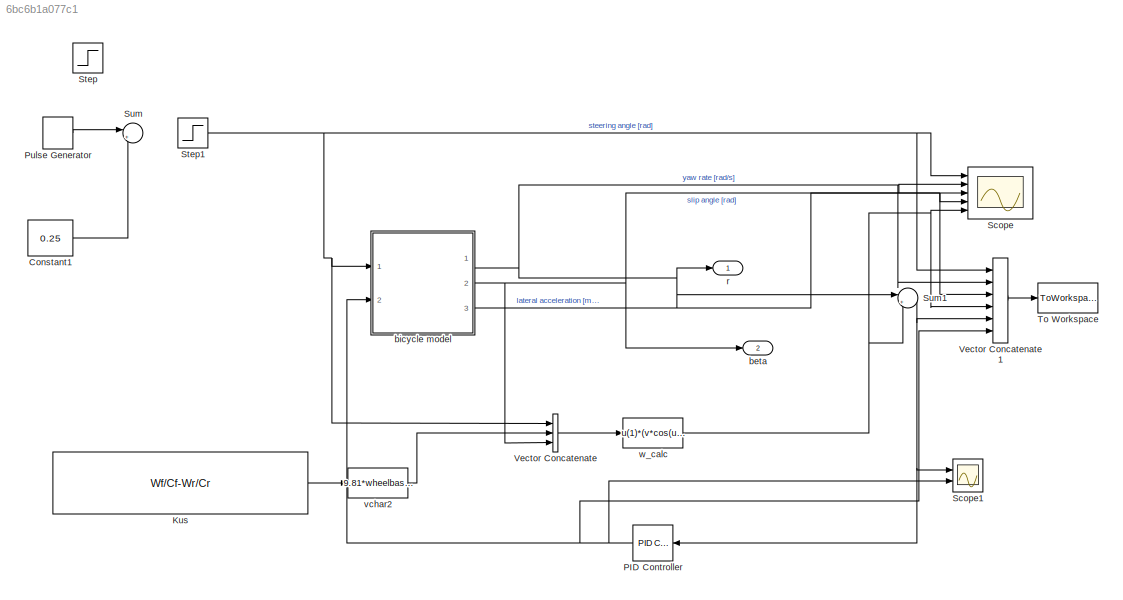
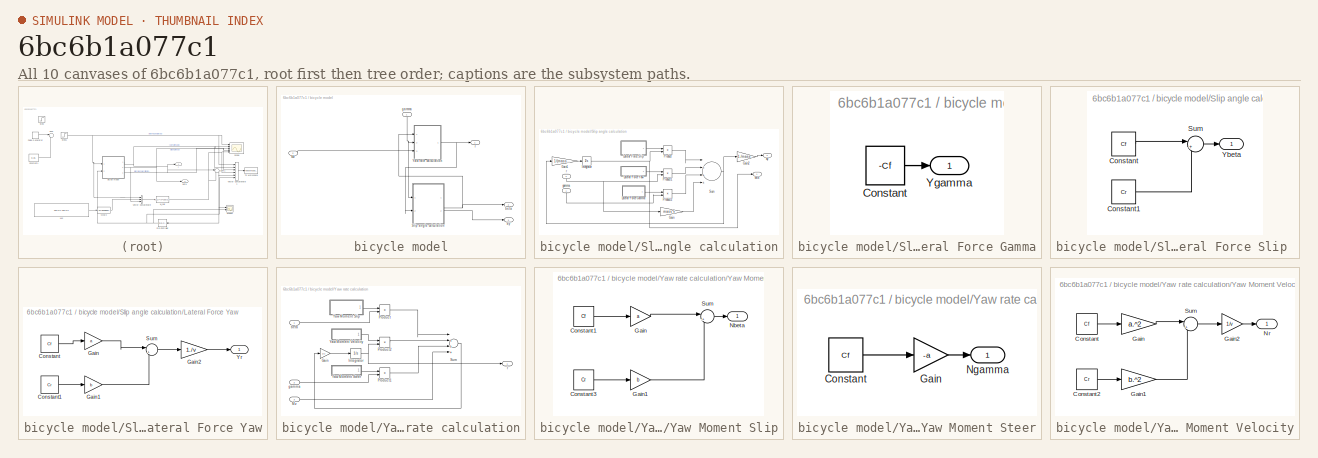
[diagram: thumbnail index - all 10 canvases of the model, root first then tree order]
MODEL slx_6bc6b1a077c1
KIND model
CONFIG InitFcn = mass = 9;\nwheelbase = 0.5;\ncgDistFromRear = 0.3;\nCf = -(cgDistFromRear/wheelbase*100)*mass*9.81*0.17;\nCr = -(100-(cgDistFromRear/wheelbase*100))*mass*9.81*0.17;\nv = 20;\nJ = 0.5;\n\na = wheelbase - cgDistFromRear;\nb = cgDistFromRear;\n\nWf = mass*(a/wheelbase);\nWr = mass*(b/wheelbase);\n
BLOCK [Constant] Constant1
  Value = 0.25
BLOCK [Constant] Kus
  Value = Wf/Cf-Wr/Cr
BLOCK [Reference] PID Controller  REF=simulink/Continuous/PID Controller
  AntiWindupMode = clamping
  Controller = PID
  D = 0
  DOutDataTypeStr = Inherit: Inherit via internal rule
  DOutMax = []
  DOutMin = []
  DParamDataTypeStr = Inherit: Inherit via internal rule
  DParamMax = []
  DParamMin = []
  ExternalReset = none
  FilterContinuousStateAttributes = ''
  FilterMethod = Forward Euler
  FilterOutDataTypeStr = Inherit: Inherit via internal rule
  FilterOutMax = []
  FilterOutMin = []
  FilterRTWStateStorageClass = Auto
  FilterStateMustResolveToSignalObject = off
  Form = Parallel
  I = 0
  IOutDataTypeStr = Inherit: Inherit via internal rule
  IOutMax = []
  IOutMin = []
  IParamDataTypeStr = Inherit: Inherit via internal rule
  IParamMax = []
  IParamMin = []
  IgnoreLimit = off
  InitialConditionForFilter = 0
  InitialConditionForIntegrator = 0
  InitialConditionSource = internal
  IntegratorContinuousStateAttributes = ''
  IntegratorMethod = Forward Euler
  IntegratorOutDataTypeStr = Inherit: Inherit via internal rule
  IntegratorOutMax = []
  IntegratorOutMin = []
  IntegratorRTWStateStorageClass = Auto
  IntegratorStateMustResolveToSignalObject = off
  Kb = 1
  KbOutDataTypeStr = Inherit: Inherit via internal rule
  KbOutMax = []
  KbOutMin = []
  KbParamDataTypeStr = Inherit: Inherit via internal rule
  KbParamMax = []
  KbParamMin = []
  Kt = 1
  KtOutDataTypeStr = Inherit: Inherit via internal rule
  KtOutMax = []
  KtOutMin = []
  KtParamDataTypeStr = Inherit: Inherit via internal rule
  KtParamMax = []
  KtParamMin = []
  LimitOutput = on
  LinearizeAsGain = on
  LockScale = off
  LowerSaturationLimit = -10
  N = 62
  NOutDataTypeStr = Inherit: Inherit via internal rule
  NOutMax = []
  NOutMin = []
  NParamDataTypeStr = Inherit: Inherit via internal rule
  NParamMax = []
  NParamMin = []
  P = 0
  POutDataTypeStr = Inherit: Inherit via internal rule
  POutMax = []
  POutMin = []
  PParamDataTypeStr = Inherit: Inherit via internal rule
  PParamMax = []
  PParamMin = []
  Ports = [1, 1]
  RndMeth = Floor
  SampleTime = 1
  SaturateOnIntegerOverflow = off
  SaturationOutDataTypeStr = Inherit: Same as input
  SaturationOutMax = []
  SaturationOutMin = []
  SourceBlock = simulink/Continuous/PID Controller
  SourceType = PID 1dof
  SumAccumDataTypeStr = Inherit: Inherit via internal rule
  SumDAccumDataTypeStr = Inherit: Inherit via internal rule
  SumDOutDataTypeStr = Inherit: Inherit via internal rule
  SumDOutMax = []
  SumDOutMin = []
  SumI1AccumDataTypeStr = Inherit: Inherit via internal rule
  SumI1OutDataTypeStr = Inherit: Inherit via internal rule
  SumI1OutMax = []
  SumI1OutMin = []
  SumI2AccumDataTypeStr = Inherit: Inherit via internal rule
  SumI2OutDataTypeStr = Inherit: Inherit via internal rule
  SumI2OutMax = []
  SumI2OutMin = []
  SumI3AccumDataTypeStr = Inherit: Inherit via internal rule
  SumI3OutDataTypeStr = Inherit: Inherit via internal rule
  SumI3OutMax = []
  SumI3OutMin = []
  SumOutDataTypeStr = Inherit: Inherit via internal rule
  SumOutMax = []
  SumOutMin = []
  TimeDomain = Continuous-time
  TrackingMode = off
  UpperSaturationLimit = 10
  ZeroCross = on
BLOCK [DiscretePulseGenerator] Pulse Generator
  Amplitude = 0.5
  Ports = [0, 1]
  PulseType = Time based
  PulseWidth = 50
BLOCK [Scope] Scope
  DataFormat = StructureWithTime
  Floating = off
  NumInputPorts = 5
  Ports = [5]
  SampleTime = 0
  ShowLegends = off
  YMax = 0.1~5~5~5~5
  YMin = 0~-5~-5~-5~-5
  ZoomMode = xonly
BLOCK [Scope] Scope1
  DataFormat = StructureWithTime
  Floating = off
  NumInputPorts = 2
  Ports = [2]
  SampleTime = 0
  SaveName = ScopeData1
  ShowLegends = off
  YMax = 0.1~5
  YMin = 0~-5
  ZoomMode = xonly
BLOCK [Step] Step
  After = 0.0125
  SampleTime = 0
BLOCK [Step] Step1
  SampleTime = 0
BLOCK [Sum] Sum
  IconShape = round
  InputSameDT = off
  Inputs = |+-
  OutDataTypeStr = Inherit: Inherit via internal rule
  Ports = [2, 1]
  SaturateOnIntegerOverflow = off
BLOCK [Sum] Sum1
  IconShape = round
  InputSameDT = off
  Inputs = |+-
  OutDataTypeStr = Inherit: Inherit via internal rule
  Ports = [2, 1]
  SaturateOnIntegerOverflow = off
BLOCK [ToWorkspace] To Workspace
  MaxDataPoints = inf
  Ports = [1]
  SampleTime = -1
  SaveFormat = Timeseries
  VariableName = simData
BLOCK [Concatenate] Vector Concatenate
  NumInputs = 3
  Ports = [3, 1]
BLOCK [Concatenate] Vector Concatenate1
  NumInputs = 6
  Ports = [6, 1]
BLOCK [Outport] beta
  IconDisplay = Port number
  Port = 2
BLOCK [SubSystem] bicycle model
  FunctionWithSeparateData = off
  MaskHideContents = off
  MinAlgLoopOccurrences = off
  Opaque = off
  Ports = [2, 3]
  PropExecContextOutsideSubsystem = off
  RTWSystemCode = Auto
  RequestExecContextInheritance = off
BLOCK [Inport] bicycle model/Mz
  IconDisplay = Port number
  Port = 2
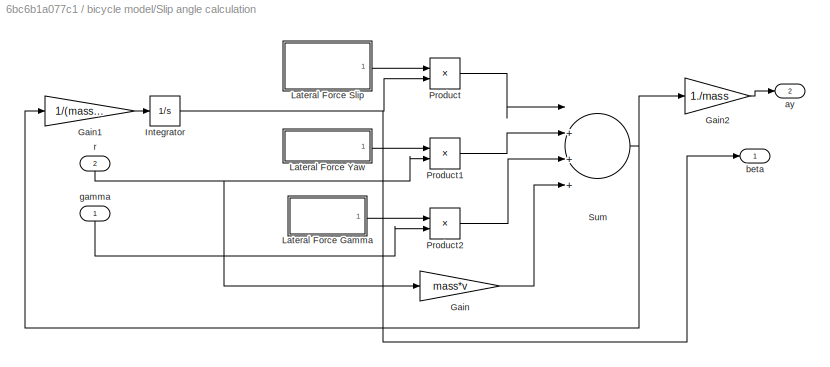
BLOCK [SubSystem] bicycle model/Slip angle calculation
  FunctionWithSeparateData = off
  MaskHideContents = off
  MinAlgLoopOccurrences = off
  Opaque = off
  Ports = [2, 2]
  PropExecContextOutsideSubsystem = off
  RTWSystemCode = Auto
  RequestExecContextInheritance = off
BLOCK [Gain] bicycle model/Slip angle calculation/Gain
  Gain = mass*v
  OutDataTypeStr = Inherit: Inherit via internal rule
  ParamDataTypeStr = Inherit: Inherit via internal rule
  SaturateOnIntegerOverflow = off
BLOCK [Gain] bicycle model/Slip angle calculation/Gain1
  Gain = 1/(mass*v)
  OutDataTypeStr = Inherit: Inherit via internal rule
  ParamDataTypeStr = Inherit: Inherit via internal rule
  SaturateOnIntegerOverflow = off
BLOCK [Gain] bicycle model/Slip angle calculation/Gain2
  Gain = 1./mass
  OutDataTypeStr = Inherit: Inherit via internal rule
  ParamDataTypeStr = Inherit: Inherit via internal rule
  SaturateOnIntegerOverflow = off
BLOCK [Integrator] bicycle model/Slip angle calculation/Integrator
  Ports = [1, 1]
BLOCK [SubSystem] bicycle model/Slip angle calculation/Lateral Force Gamma
  FunctionWithSeparateData = off
  MaskHideContents = off
  MinAlgLoopOccurrences = off
  Opaque = off
  Ports = [0, 1]
  PropExecContextOutsideSubsystem = off
  RTWSystemCode = Auto
  RequestExecContextInheritance = off
BLOCK [Constant] bicycle model/Slip angle calculation/Lateral Force Gamma/Constant
  Value = -Cf
BLOCK [Outport] bicycle model/Slip angle calculation/Lateral Force Gamma/Ygamma
  IconDisplay = Port number
BLOCK [SubSystem] bicycle model/Slip angle calculation/Lateral Force Slip 
  FunctionWithSeparateData = off
  MaskHideContents = off
  MinAlgLoopOccurrences = off
  Opaque = off
  Ports = [0, 1]
  PropExecContextOutsideSubsystem = off
  RTWSystemCode = Auto
  RequestExecContextInheritance = off
BLOCK [Constant] bicycle model/Slip angle calculation/Lateral Force Slip /Constant
  Value = Cf
BLOCK [Constant] bicycle model/Slip angle calculation/Lateral Force Slip /Constant1
  Value = Cr
BLOCK [Sum] bicycle model/Slip angle calculation/Lateral Force Slip /Sum
  IconShape = round
  InputSameDT = off
  Inputs = |++
  OutDataTypeStr = Inherit: Inherit via internal rule
  Ports = [2, 1]
  SaturateOnIntegerOverflow = off
BLOCK [Outport] bicycle model/Slip angle calculation/Lateral Force Slip /Ybeta
  IconDisplay = Port number
BLOCK [SubSystem] bicycle model/Slip angle calculation/Lateral Force Yaw
  FunctionWithSeparateData = off
  MaskHideContents = off
  MinAlgLoopOccurrences = off
  Opaque = off
  Ports = [0, 1]
  PropExecContextOutsideSubsystem = off
  RTWSystemCode = Auto
  RequestExecContextInheritance = off
BLOCK [Constant] bicycle model/Slip angle calculation/Lateral Force Yaw/Constant
  Value = Cf
BLOCK [Constant] bicycle model/Slip angle calculation/Lateral Force Yaw/Constant1
  Value = Cr
BLOCK [Gain] bicycle model/Slip angle calculation/Lateral Force Yaw/Gain
  Gain = a
  OutDataTypeStr = Inherit: Inherit via internal rule
  ParamDataTypeStr = Inherit: Inherit via internal rule
  SaturateOnIntegerOverflow = off
BLOCK [Gain] bicycle model/Slip angle calculation/Lateral Force Yaw/Gain1
  Gain = b
  OutDataTypeStr = Inherit: Inherit via internal rule
  ParamDataTypeStr = Inherit: Inherit via internal rule
  SaturateOnIntegerOverflow = off
BLOCK [Gain] bicycle model/Slip angle calculation/Lateral Force Yaw/Gain2
  Gain = 1./v
  OutDataTypeStr = Inherit: Inherit via internal rule
  ParamDataTypeStr = Inherit: Inherit via internal rule
  SaturateOnIntegerOverflow = off
BLOCK [Sum] bicycle model/Slip angle calculation/Lateral Force Yaw/Sum
  IconShape = round
  InputSameDT = off
  Inputs = |+-
  OutDataTypeStr = Inherit: Inherit via internal rule
  Ports = [2, 1]
  SaturateOnIntegerOverflow = off
BLOCK [Outport] bicycle model/Slip angle calculation/Lateral Force Yaw/Yr
  IconDisplay = Port number
BLOCK [Product] bicycle model/Slip angle calculation/Product
  InputSameDT = off
  OutDataTypeStr = Inherit: Inherit via internal rule
  Ports = [2, 1]
  RndMeth = Floor
  SaturateOnIntegerOverflow = off
BLOCK [Product] bicycle model/Slip angle calculation/Product1
  InputSameDT = off
  OutDataTypeStr = Inherit: Inherit via internal rule
  Ports = [2, 1]
  RndMeth = Floor
  SaturateOnIntegerOverflow = off
BLOCK [Product] bicycle model/Slip angle calculation/Product2
  InputSameDT = off
  OutDataTypeStr = Inherit: Inherit via internal rule
  Ports = [2, 1]
  RndMeth = Floor
  SaturateOnIntegerOverflow = off
BLOCK [Sum] bicycle model/Slip angle calculation/Sum
  InputSameDT = off
  Inputs = |+++-
  OutDataTypeStr = Inherit: Inherit via internal rule
  Ports = [4, 1]
  SaturateOnIntegerOverflow = off
BLOCK [Outport] bicycle model/Slip angle calculation/ay
  IconDisplay = Port number
  Port = 2
BLOCK [Outport] bicycle model/Slip angle calculation/beta
  IconDisplay = Port number
BLOCK [Inport] bicycle model/Slip angle calculation/gamma
  IconDisplay = Port number
BLOCK [Inport] bicycle model/Slip angle calculation/r
  IconDisplay = Port number
  Port = 2
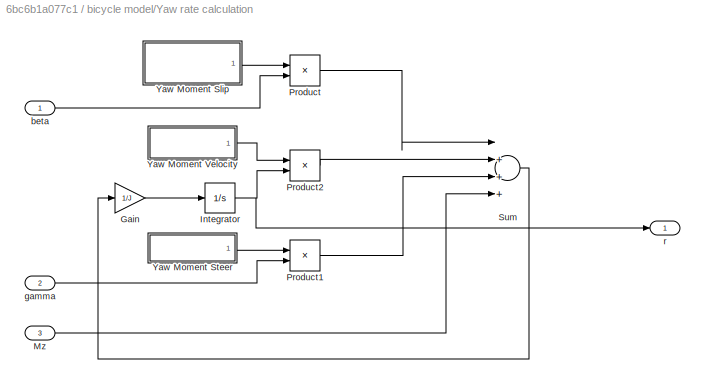
BLOCK [SubSystem] bicycle model/Yaw rate calculation
  FunctionWithSeparateData = off
  MaskHideContents = off
  MinAlgLoopOccurrences = off
  Opaque = off
  Ports = [3, 1]
  PropExecContextOutsideSubsystem = off
  RTWSystemCode = Auto
  RequestExecContextInheritance = off
BLOCK [Gain] bicycle model/Yaw rate calculation/Gain
  Gain = 1/J
  OutDataTypeStr = Inherit: Inherit via internal rule
  ParamDataTypeStr = Inherit: Inherit via internal rule
  SaturateOnIntegerOverflow = off
BLOCK [Integrator] bicycle model/Yaw rate calculation/Integrator
  Ports = [1, 1]
BLOCK [Inport] bicycle model/Yaw rate calculation/Mz
  IconDisplay = Port number
  Port = 3
BLOCK [Product] bicycle model/Yaw rate calculation/Product
  InputSameDT = off
  OutDataTypeStr = Inherit: Inherit via internal rule
  Ports = [2, 1]
  RndMeth = Floor
  SaturateOnIntegerOverflow = off
BLOCK [Product] bicycle model/Yaw rate calculation/Product1
  InputSameDT = off
  OutDataTypeStr = Inherit: Inherit via internal rule
  Ports = [2, 1]
  RndMeth = Floor
  SaturateOnIntegerOverflow = off
BLOCK [Product] bicycle model/Yaw rate calculation/Product2
  InputSameDT = off
  OutDataTypeStr = Inherit: Inherit via internal rule
  Ports = [2, 1]
  RndMeth = Floor
  SaturateOnIntegerOverflow = off
BLOCK [Sum] bicycle model/Yaw rate calculation/Sum
  InputSameDT = off
  Inputs = |++++
  OutDataTypeStr = Inherit: Inherit via internal rule
  Ports = [4, 1]
  SaturateOnIntegerOverflow = off
BLOCK [SubSystem] bicycle model/Yaw rate calculation/Yaw Moment Slip
  FunctionWithSeparateData = off
  MaskHideContents = off
  MinAlgLoopOccurrences = off
  Opaque = off
  Ports = [0, 1]
  PropExecContextOutsideSubsystem = off
  RTWSystemCode = Auto
  RequestExecContextInheritance = off
BLOCK [Constant] bicycle model/Yaw rate calculation/Yaw Moment Slip/Constant1
  Value = Cf
BLOCK [Constant] bicycle model/Yaw rate calculation/Yaw Moment Slip/Constant3
  Value = Cr
BLOCK [Gain] bicycle model/Yaw rate calculation/Yaw Moment Slip/Gain
  Gain = a
  OutDataTypeStr = Inherit: Inherit via internal rule
  ParamDataTypeStr = Inherit: Inherit via internal rule
  SaturateOnIntegerOverflow = off
BLOCK [Gain] bicycle model/Yaw rate calculation/Yaw Moment Slip/Gain1
  Gain = b
  OutDataTypeStr = Inherit: Inherit via internal rule
  ParamDataTypeStr = Inherit: Inherit via internal rule
  SaturateOnIntegerOverflow = off
BLOCK [Outport] bicycle model/Yaw rate calculation/Yaw Moment Slip/Nbeta
  IconDisplay = Port number
BLOCK [Sum] bicycle model/Yaw rate calculation/Yaw Moment Slip/Sum
  IconShape = round
  InputSameDT = off
  Inputs = |+-
  OutDataTypeStr = Inherit: Inherit via internal rule
  Ports = [2, 1]
  SaturateOnIntegerOverflow = off
BLOCK [SubSystem] bicycle model/Yaw rate calculation/Yaw Moment Steer
  FunctionWithSeparateData = off
  MaskHideContents = off
  MinAlgLoopOccurrences = off
  Opaque = off
  Ports = [0, 1]
  PropExecContextOutsideSubsystem = off
  RTWSystemCode = Auto
  RequestExecContextInheritance = off
BLOCK [Constant] bicycle model/Yaw rate calculation/Yaw Moment Steer/Constant
  Value = Cf
BLOCK [Gain] bicycle model/Yaw rate calculation/Yaw Moment Steer/Gain
  Gain = -a
  OutDataTypeStr = Inherit: Inherit via internal rule
  ParamDataTypeStr = Inherit: Inherit via internal rule
  SaturateOnIntegerOverflow = off
BLOCK [Outport] bicycle model/Yaw rate calculation/Yaw Moment Steer/Ngamma
  IconDisplay = Port number
BLOCK [SubSystem] bicycle model/Yaw rate calculation/Yaw Moment Velocity
  FunctionWithSeparateData = off
  MaskHideContents = off
  MinAlgLoopOccurrences = off
  Opaque = off
  Ports = [0, 1]
  PropExecContextOutsideSubsystem = off
  RTWSystemCode = Auto
  RequestExecContextInheritance = off
BLOCK [Constant] bicycle model/Yaw rate calculation/Yaw Moment Velocity/Constant
  Value = Cf
BLOCK [Constant] bicycle model/Yaw rate calculation/Yaw Moment Velocity/Constant2
  Value = Cr
BLOCK [Gain] bicycle model/Yaw rate calculation/Yaw Moment Velocity/Gain
  Gain = a.^2
  OutDataTypeStr = Inherit: Inherit via internal rule
  ParamDataTypeStr = Inherit: Inherit via internal rule
  SaturateOnIntegerOverflow = off
BLOCK [Gain] bicycle model/Yaw rate calculation/Yaw Moment Velocity/Gain1
  Gain = b.^2
  OutDataTypeStr = Inherit: Inherit via internal rule
  ParamDataTypeStr = Inherit: Inherit via internal rule
  SaturateOnIntegerOverflow = off
BLOCK [Gain] bicycle model/Yaw rate calculation/Yaw Moment Velocity/Gain2
  Gain = 1/v
  OutDataTypeStr = Inherit: Inherit via internal rule
  ParamDataTypeStr = Inherit: Inherit via internal rule
  SaturateOnIntegerOverflow = off
BLOCK [Outport] bicycle model/Yaw rate calculation/Yaw Moment Velocity/Nr
  IconDisplay = Port number
BLOCK [Sum] bicycle model/Yaw rate calculation/Yaw Moment Velocity/Sum
  IconShape = round
  InputSameDT = off
  Inputs = |++
  OutDataTypeStr = Inherit: Inherit via internal rule
  Ports = [2, 1]
  SaturateOnIntegerOverflow = off
BLOCK [Inport] bicycle model/Yaw rate calculation/beta
  IconDisplay = Port number
BLOCK [Inport] bicycle model/Yaw rate calculation/gamma
  IconDisplay = Port number
  Port = 2
BLOCK [Outport] bicycle model/Yaw rate calculation/r
  IconDisplay = Port number
BLOCK [Outport] bicycle model/ay
  IconDisplay = Port number
  Port = 3
BLOCK [Outport] bicycle model/beta
  IconDisplay = Port number
  Port = 2
BLOCK [Inport] bicycle model/gamma
  IconDisplay = Port number
BLOCK [Outport] bicycle model/r
  IconDisplay = Port number
BLOCK [Outport] r
  IconDisplay = Port number
BLOCK [Fcn] vchar2
  Expr = 9.81*wheelbase/u(1)
BLOCK [Fcn] w_calc
  Expr = u(1)*(v*cos(u(3))/wheelbase)*(1+(v*cos(u(3)))^2/u(2))
LINE Constant1:1 -> Sum:2
LINE Kus:1 -> vchar2:1
NET PID Controller:1 -> Scope1:2, Vector Concatenate1:6, bicycle model:2
LINE Pulse Generator:1 -> Sum:1
NET Step1:1 -> Scope:1, Vector Concatenate1:1, Vector Concatenate:1, bicycle model:1
NET Sum1:1 -> PID Controller:1, Scope1:1, Vector Concatenate1:5
LINE Vector Concatenate1:1 -> To Workspace:1
LINE Vector Concatenate:1 -> w_calc:1
LINE bicycle model/Mz:1 -> bicycle model/Yaw rate calculation:3
LINE bicycle model/Slip angle calculation/Gain1:1 -> bicycle model/Slip angle calculation/Integrator:1
LINE bicycle model/Slip angle calculation/Gain2:1 -> bicycle model/Slip angle calculation/ay:1
LINE bicycle model/Slip angle calculation/Gain:1 -> bicycle model/Slip angle calculation/Sum:4
NET bicycle model/Slip angle calculation/Integrator:1 -> bicycle model/Slip angle calculation/Product:2, bicycle model/Slip angle calculation/beta:1
LINE bicycle model/Slip angle calculation/Lateral Force Gamma/Constant:1 -> bicycle model/Slip angle calculation/Lateral Force Gamma/Ygamma:1
LINE bicycle model/Slip angle calculation/Lateral Force Gamma:1 -> bicycle model/Slip angle calculation/Product2:1
LINE bicycle model/Slip angle calculation/Lateral Force Slip /Constant1:1 -> bicycle model/Slip angle calculation/Lateral Force Slip /Sum:2
LINE bicycle model/Slip angle calculation/Lateral Force Slip /Constant:1 -> bicycle model/Slip angle calculation/Lateral Force Slip /Sum:1
LINE bicycle model/Slip angle calculation/Lateral Force Slip /Sum:1 -> bicycle model/Slip angle calculation/Lateral Force Slip /Ybeta:1
LINE bicycle model/Slip angle calculation/Lateral Force Slip :1 -> bicycle model/Slip angle calculation/Product:1
LINE bicycle model/Slip angle calculation/Lateral Force Yaw/Constant1:1 -> bicycle model/Slip angle calculation/Lateral Force Yaw/Gain1:1
LINE bicycle model/Slip angle calculation/Lateral Force Yaw/Constant:1 -> bicycle model/Slip angle calculation/Lateral Force Yaw/Gain:1
LINE bicycle model/Slip angle calculation/Lateral Force Yaw/Gain1:1 -> bicycle model/Slip angle calculation/Lateral Force Yaw/Sum:2
LINE bicycle model/Slip angle calculation/Lateral Force Yaw/Gain2:1 -> bicycle model/Slip angle calculation/Lateral Force Yaw/Yr:1
LINE bicycle model/Slip angle calculation/Lateral Force Yaw/Gain:1 -> bicycle model/Slip angle calculation/Lateral Force Yaw/Sum:1
LINE bicycle model/Slip angle calculation/Lateral Force Yaw/Sum:1 -> bicycle model/Slip angle calculation/Lateral Force Yaw/Gain2:1
LINE bicycle model/Slip angle calculation/Lateral Force Yaw:1 -> bicycle model/Slip angle calculation/Product1:1
LINE bicycle model/Slip angle calculation/Product1:1 -> bicycle model/Slip angle calculation/Sum:2
LINE bicycle model/Slip angle calculation/Product2:1 -> bicycle model/Slip angle calculation/Sum:3
LINE bicycle model/Slip angle calculation/Product:1 -> bicycle model/Slip angle calculation/Sum:1
NET bicycle model/Slip angle calculation/Sum:1 -> bicycle model/Slip angle calculation/Gain1:1, bicycle model/Slip angle calculation/Gain2:1
LINE bicycle model/Slip angle calculation/gamma:1 -> bicycle model/Slip angle calculation/Product2:2
NET bicycle model/Slip angle calculation/r:1 -> bicycle model/Slip angle calculation/Gain:1, bicycle model/Slip angle calculation/Product1:2
NET bicycle model/Slip angle calculation:1 -> bicycle model/Yaw rate calculation:1, bicycle model/beta:1
LINE bicycle model/Slip angle calculation:2 -> bicycle model/ay:1
LINE bicycle model/Yaw rate calculation/Gain:1 -> bicycle model/Yaw rate calculation/Integrator:1
NET bicycle model/Yaw rate calculation/Integrator:1 -> bicycle model/Yaw rate calculation/Product2:2, bicycle model/Yaw rate calculation/r:1
LINE bicycle model/Yaw rate calculation/Mz:1 -> bicycle model/Yaw rate calculation/Sum:4
LINE bicycle model/Yaw rate calculation/Product1:1 -> bicycle model/Yaw rate calculation/Sum:3
LINE bicycle model/Yaw rate calculation/Product2:1 -> bicycle model/Yaw rate calculation/Sum:2
LINE bicycle model/Yaw rate calculation/Product:1 -> bicycle model/Yaw rate calculation/Sum:1
LINE bicycle model/Yaw rate calculation/Sum:1 -> bicycle model/Yaw rate calculation/Gain:1
LINE bicycle model/Yaw rate calculation/Yaw Moment Slip/Constant1:1 -> bicycle model/Yaw rate calculation/Yaw Moment Slip/Gain:1
LINE bicycle model/Yaw rate calculation/Yaw Moment Slip/Constant3:1 -> bicycle model/Yaw rate calculation/Yaw Moment Slip/Gain1:1
LINE bicycle model/Yaw rate calculation/Yaw Moment Slip/Gain1:1 -> bicycle model/Yaw rate calculation/Yaw Moment Slip/Sum:2
LINE bicycle model/Yaw rate calculation/Yaw Moment Slip/Gain:1 -> bicycle model/Yaw rate calculation/Yaw Moment Slip/Sum:1
LINE bicycle model/Yaw rate calculation/Yaw Moment Slip/Sum:1 -> bicycle model/Yaw rate calculation/Yaw Moment Slip/Nbeta:1
LINE bicycle model/Yaw rate calculation/Yaw Moment Slip:1 -> bicycle model/Yaw rate calculation/Product:1
LINE bicycle model/Yaw rate calculation/Yaw Moment Steer/Constant:1 -> bicycle model/Yaw rate calculation/Yaw Moment Steer/Gain:1
LINE bicycle model/Yaw rate calculation/Yaw Moment Steer/Gain:1 -> bicycle model/Yaw rate calculation/Yaw Moment Steer/Ngamma:1
LINE bicycle model/Yaw rate calculation/Yaw Moment Steer:1 -> bicycle model/Yaw rate calculation/Product1:1
LINE bicycle model/Yaw rate calculation/Yaw Moment Velocity/Constant2:1 -> bicycle model/Yaw rate calculation/Yaw Moment Velocity/Gain1:1
LINE bicycle model/Yaw rate calculation/Yaw Moment Velocity/Constant:1 -> bicycle model/Yaw rate calculation/Yaw Moment Velocity/Gain:1
LINE bicycle model/Yaw rate calculation/Yaw Moment Velocity/Gain1:1 -> bicycle model/Yaw rate calculation/Yaw Moment Velocity/Sum:2
LINE bicycle model/Yaw rate calculation/Yaw Moment Velocity/Gain2:1 -> bicycle model/Yaw rate calculation/Yaw Moment Velocity/Nr:1
LINE bicycle model/Yaw rate calculation/Yaw Moment Velocity/Gain:1 -> bicycle model/Yaw rate calculation/Yaw Moment Velocity/Sum:1
LINE bicycle model/Yaw rate calculation/Yaw Moment Velocity/Sum:1 -> bicycle model/Yaw rate calculation/Yaw Moment Velocity/Gain2:1
LINE bicycle model/Yaw rate calculation/Yaw Moment Velocity:1 -> bicycle model/Yaw rate calculation/Product2:1
LINE bicycle model/Yaw rate calculation/beta:1 -> bicycle model/Yaw rate calculation/Product:2
LINE bicycle model/Yaw rate calculation/gamma:1 -> bicycle model/Yaw rate calculation/Product1:2
NET bicycle model/Yaw rate calculation:1 -> bicycle model/Slip angle calculation:2, bicycle model/r:1
NET bicycle model/gamma:1 -> bicycle model/Slip angle calculation:1, bicycle model/Yaw rate calculation:2
NET bicycle model:1 -> Scope:2, Sum1:1, Vector Concatenate1:2, r:1
NET bicycle model:2 -> Scope:3, Vector Concatenate:3, beta:1
NET bicycle model:3 -> Scope:4, Vector Concatenate1:3
LINE vchar2:1 -> Vector Concatenate:2
NET w_calc:1 -> Scope:5, Sum1:2, Vector Concatenate1:4
note: NET lines group one-source signal fan-out (src -> all destinations, sorted); 1:1 wires keep LINE
